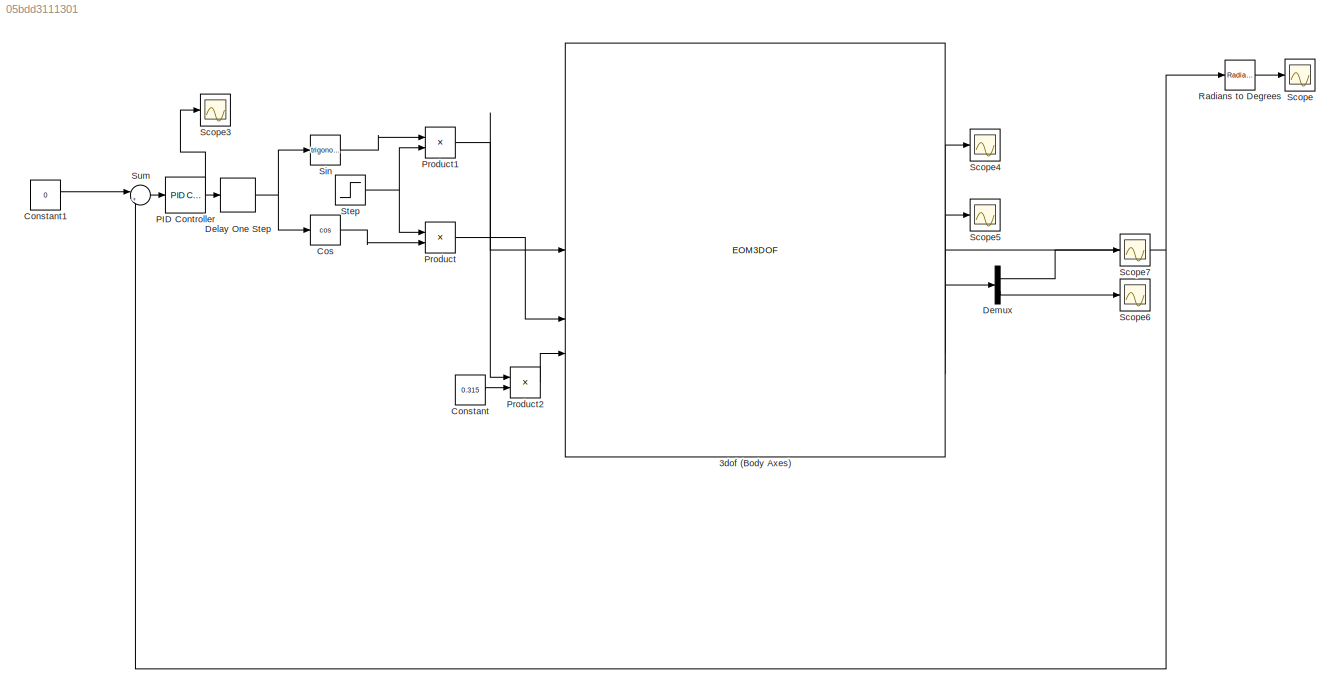
MODEL slx_05bdd3111301
KIND model
CONFIG AbsTol = auto
CONFIG EnableMultiTasking = off
CONFIG FixedStep = auto
CONFIG MaxStep = auto
CONFIG MinStep = auto
CONFIG RelTol = 1e-3
CONFIG SampleTimeConstraint = Unconstrained
CONFIG SolverName = VariableStepAuto
CONFIG StartTime = 0.0
CONFIG StopTime = 10
BLOCK [EOM3DOF] 3dof (Body Axes)
  Iyy = 1.174*9.81*(0.2425^2)*((27.73/15)^2)/(4*((pi)^2)*1.6)
  mass = 1.174
  v_ini = 0
BLOCK [Constant] Constant
  Value = 0.315
BLOCK [Constant] Constant1
  Value = 0
BLOCK [Trigonometry] Cos
  Operator = cos
BLOCK [Delay] Delay One Step
  DelayLength = 1
  InitialCondition = 0.001
  InputPortMap = u0
BLOCK [Demux] Demux
  Outputs = 2
BLOCK [Reference] PID Controller  REF=slpidlib/PID Controller
  LibrarySourceBlock = simulink/Continuous/PID Controller
  SourceBlock = slpidlib/PID Controller
  SourceType = PID 1dof
BLOCK [Product] Product
BLOCK [Product] Product1
BLOCK [Product] Product2
BLOCK [Reference] Radians to Degrees  REF=simulink_extras/Transformations/Radians
to Degrees
  SourceBlock = simulink_extras/Transformations/Radians\nto Degrees
  SourceType = RadiansToDegrees
BLOCK [Scope] Scope
  Floating = off
  NumInputPorts = 1
  ScopeSpecificationString = Simulink.scopes.TimeScopeBlockCfg('CurrentConfiguration', extmgr.ConfigurationSet(extmgr.Configuration('Core','General UI',true),extmgr.Configuration('Core','Source UI',true),extmgr.Configuration('Sources','WiredSimulink',true),extmgr.Configuration('Visuals','Time Domain',true,'SerializedDisplays',{struct('MinYLimReal','-223.98373','MaxYLimReal','220.56876','YLabelReal','','MinYLimMag',' 0.00000',...<+1468ch>
BLOCK [Scope] Scope3
  Floating = off
  NumInputPorts = 1
  ScopeSpecificationString = Simulink.scopes.TimeScopeBlockCfg('CurrentConfiguration', extmgr.ConfigurationSet(extmgr.Configuration('Core','General UI',true),extmgr.Configuration('Core','Source UI',true),extmgr.Configuration('Sources','WiredSimulink',true,'DataLoggingVariableName','ScopeData3'),extmgr.Configuration('Visuals','Time Domain',true,'SerializedDisplays',{struct('MinYLimReal','-4.19297','MaxYLimReal','4.29054','YLab...<+1492ch>
BLOCK [Scope] Scope4
  Floating = off
  NumInputPorts = 1
  ScopeSpecificationString = Simulink.scopes.TimeScopeBlockCfg('CurrentConfiguration', extmgr.ConfigurationSet(extmgr.Configuration('Core','General UI',true),extmgr.Configuration('Core','Source UI',true),extmgr.Configuration('Sources','WiredSimulink',true,'DataLoggingVariableName','ScopeData4'),extmgr.Configuration('Visuals','Time Domain',true,'SerializedDisplays',{struct('MinYLimReal','-11.55027','MaxYLimReal','2.65138','YLa...<+1500ch>
BLOCK [Scope] Scope5
  Floating = off
  NumInputPorts = 1
  ScopeSpecificationString = Simulink.scopes.TimeScopeBlockCfg('CurrentConfiguration', extmgr.ConfigurationSet(extmgr.Configuration('Core','General UI',true),extmgr.Configuration('Core','Source UI',true),extmgr.Configuration('Sources','WiredSimulink',true,'DataLoggingVariableName','ScopeData5'),extmgr.Configuration('Visuals','Time Domain',true,'SerializedDisplays',{struct('MinYLimReal','-10.72142','MaxYLimReal','10.5313','YLa...<+1500ch>
BLOCK [Scope] Scope6
  Floating = off
  NumInputPorts = 1
  ScopeSpecificationString = Simulink.scopes.TimeScopeBlockCfg('CurrentConfiguration', extmgr.ConfigurationSet(extmgr.Configuration('Core','General UI',true),extmgr.Configuration('Core','Source UI',true),extmgr.Configuration('Sources','WiredSimulink',true,'DataLoggingVariableName','ScopeData6'),extmgr.Configuration('Visuals','Time Domain',true,'SerializedDisplays',{struct('MinYLimReal','-65.76019','MaxYLimReal','591.84167','Y...<+1495ch>
BLOCK [Scope] Scope7
  Floating = off
  NumInputPorts = 1
  ScopeSpecificationString = Simulink.scopes.TimeScopeBlockCfg('CurrentConfiguration', extmgr.ConfigurationSet(extmgr.Configuration('Core','General UI',true),extmgr.Configuration('Core','Source UI',true),extmgr.Configuration('Sources','WiredSimulink',true,'DataLoggingVariableName','ScopeData7'),extmgr.Configuration('Visuals','Time Domain',true,'SerializedDisplays',{struct('MinYLimReal','-3.05166','MaxYLimReal','0.52509','YLab...<+1485ch>
BLOCK [Trigonometry] Sin
BLOCK [Step] Step
  SampleTime = 0
  Time = 0
BLOCK [Sum] Sum
  Inputs = |+-
NET 3dof (Body Axes):1 -> Radians to Degrees:1, Sum:2
LINE 3dof (Body Axes):2 -> Scope4:1
LINE 3dof (Body Axes):3 -> Scope5:1
LINE 3dof (Body Axes):4 -> Demux:1
LINE Constant1:1 -> Sum:1
LINE Constant:1 -> Product2:2
LINE Cos:1 -> Product:2
NET Delay One Step:1 -> Cos:1, Sin:1
LINE Demux:1 -> Scope7:1
LINE Demux:2 -> Scope6:1
NET PID Controller:1 -> Delay One Step:1, Scope3:1
NET Product1:1 -> 3dof (Body Axes):1, Product2:1
LINE Product2:1 -> 3dof (Body Axes):3
LINE Product:1 -> 3dof (Body Axes):2
LINE Radians to Degrees:1 -> Scope:1
LINE Sin:1 -> Product1:1
NET Step:1 -> Product1:2, Product:1
LINE Sum:1 -> PID Controller:1
note: NET lines group one-source signal fan-out (src -> all destinations, sorted); 1:1 wires keep LINE
